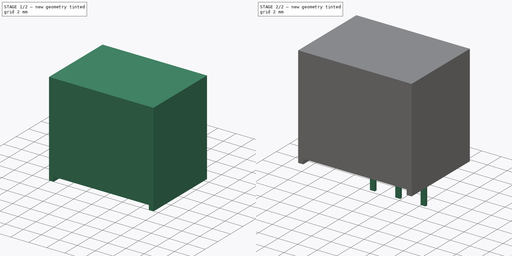
[diagram: build sequence overview — one tinted view per stage of 2, left to right]
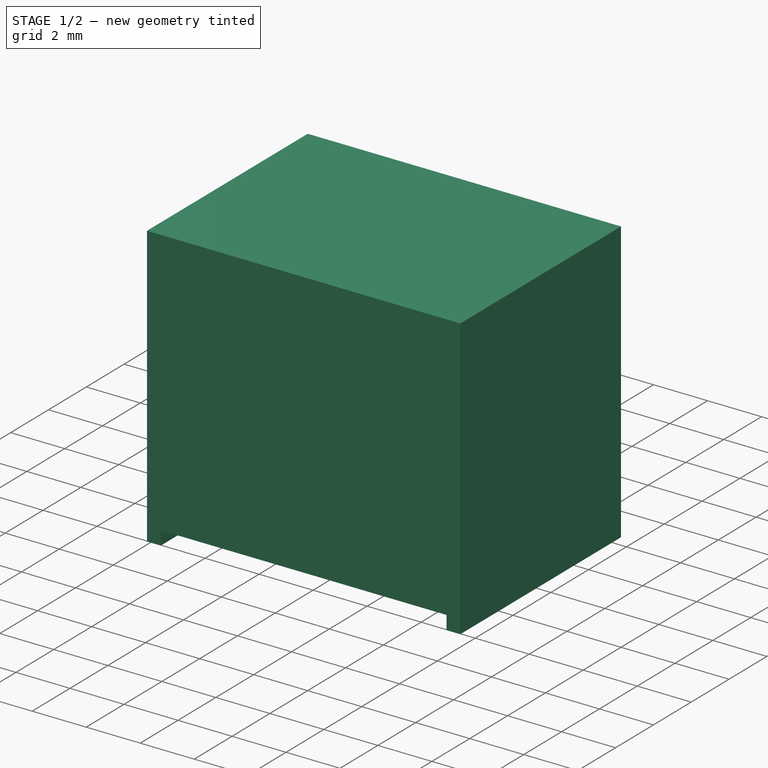
[diagram: stage 1 of 2 — iso view after this stage's code; geometry added in this stage tinted green]
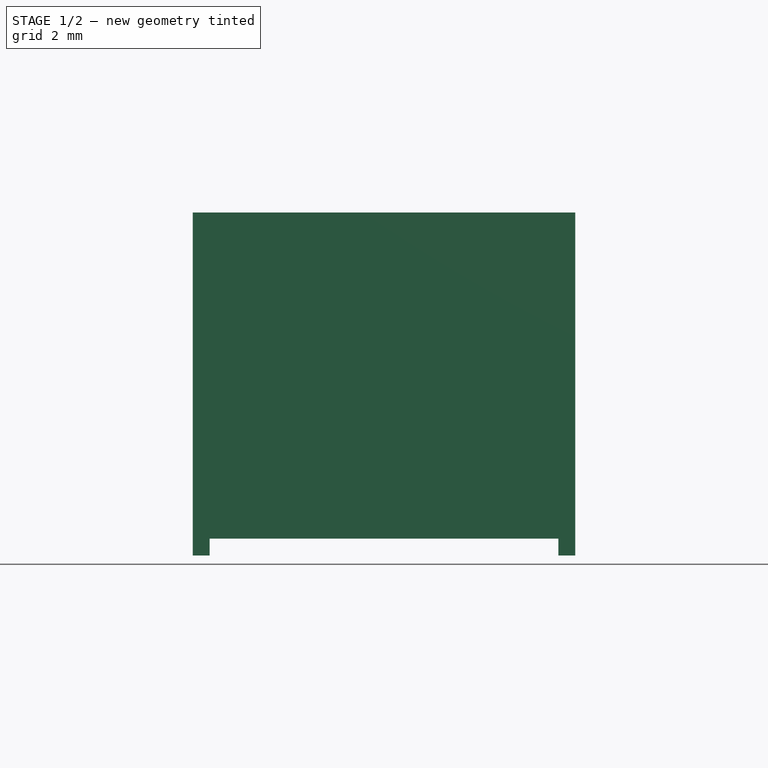
[diagram: stage 1 of 2 — front view after this stage's code; geometry added in this stage tinted green]
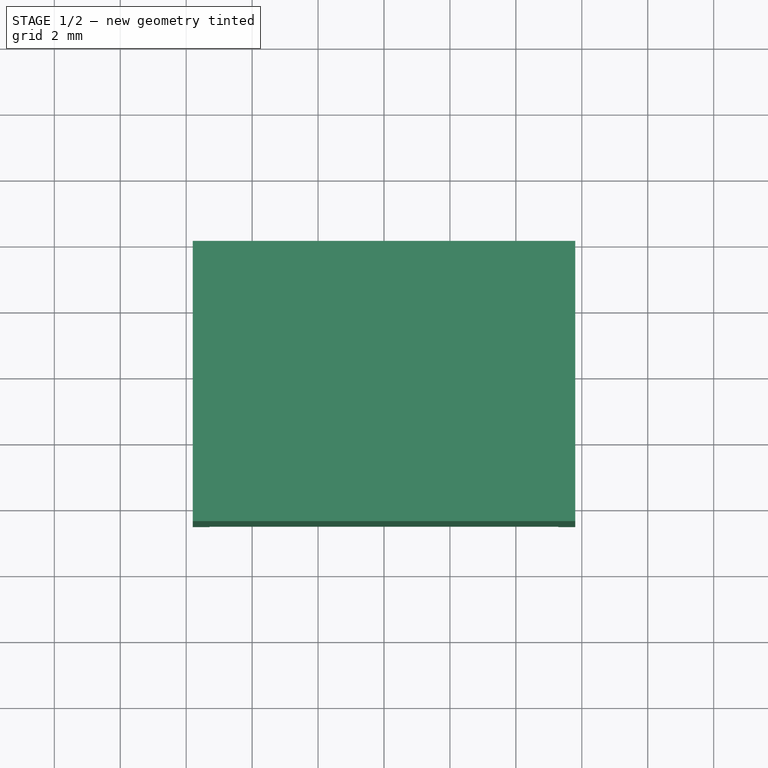
[diagram: stage 1 of 2 — top view after this stage's code; geometry added in this stage tinted green]
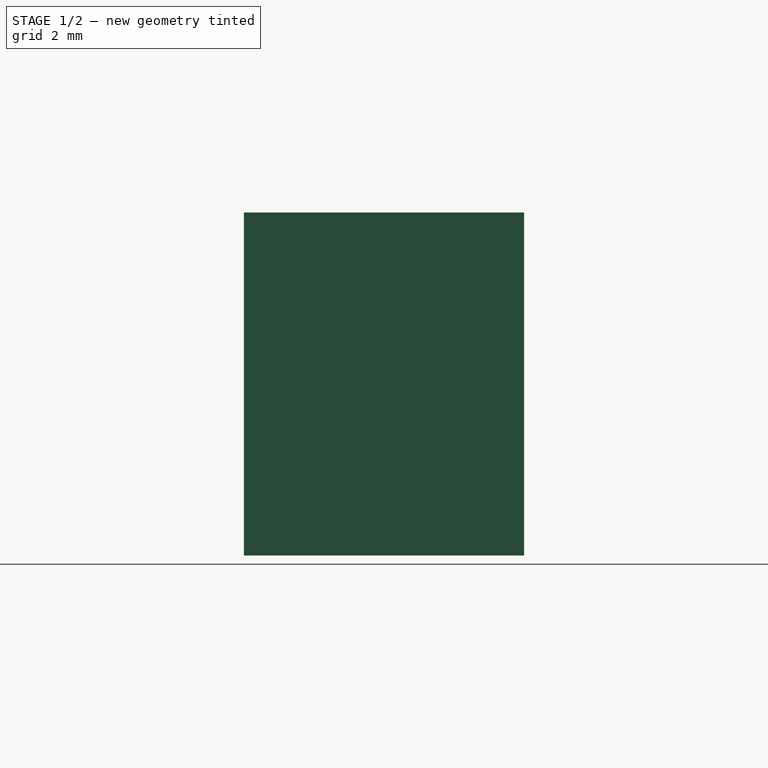
[diagram: stage 1 of 2 — right view after this stage's code; geometry added in this stage tinted green]
FCSTD DOCUMENT  (FreeCAD 0.16RUnknown)
Label: R-78E-0-5
License: All rights reserved
LicenseURL: http://en.wikipedia.org/wiki/All_rights_reserved
objects: Sketcher::SketchObject×2, PartDesign::Pad×2
note: 6 computed .brp shape members not serialized (recipe doc carries the construction recipe); baked Part::Feature solids carry a one-line shape summary decoded from their .brp

FEATURE [Sketcher::SketchObject] Sketch
  Placement = pos=(0,0,0) rot=(1,0,0;1.5708rad)
  sketch-geometry (8):
    g0: LineSegment StartX=-5.29 StartY=0 StartZ=0 EndX=-5.8 EndY=0 EndZ=0
    g1: LineSegment StartX=-5.8 StartY=0 StartZ=0 EndX=-5.8 EndY=10.4 EndZ=0
    g2: LineSegment StartX=-5.8 StartY=10.4 StartZ=0 EndX=5.8 EndY=10.4 EndZ=0
    g3: LineSegment StartX=5.8 StartY=10.4 StartZ=0 EndX=5.8 EndY=0 EndZ=0
    g4: LineSegment StartX=5.8 StartY=0 StartZ=0 EndX=5.29 EndY=0 EndZ=0
    g5: LineSegment StartX=5.29 StartY=0 StartZ=0 EndX=5.29 EndY=0.51 EndZ=0
    g6: LineSegment StartX=5.29 StartY=0.51 StartZ=0 EndX=-5.29 EndY=0.51 EndZ=0
    g7: LineSegment StartX=-5.29 StartY=0.51 StartZ=0 EndX=-5.29 EndY=0 EndZ=0
  constraints (24):
    c: PointOnObject(g0,g-1)
    c: PointOnObject(g0,g-1)
    c: Coincident(g0,g1)
    c: Vertical(g1)
    c: Coincident(g1,g2)
    c: Horizontal(g2)
    c: Coincident(g2,g3)
    c: PointOnObject(g3,g-1)
    c: Vertical(g3)
    c: Coincident(g3,g4)
    c: PointOnObject(g4,g-1)
    c: Coincident(g4,g5)
    c: Vertical(g5)
    c: Coincident(g5,g6)
    c: Horizontal(g6)
    c: Coincident(g6,g7)
    c: Coincident(g7,g0)
    c: Vertical(g7)
    c: Symmetric(g1,g2,g-2)
    c: Equal(g4,g0)
    c: DistanceY(g7,g7) = 0.51
    c: DistanceY(g1,g1) = 10.4
    c: DistanceX(g0,g0) = 0.51
    c: DistanceX(g2,g2) = 11.6
FEATURE [PartDesign::Pad] Pad
  Length = 8.5
  Length2 = 100
  Placement = pos=(0,0,0) rot=(1,0,0;1.5708rad)
  Sketch = -> Sketch
  Type = 0
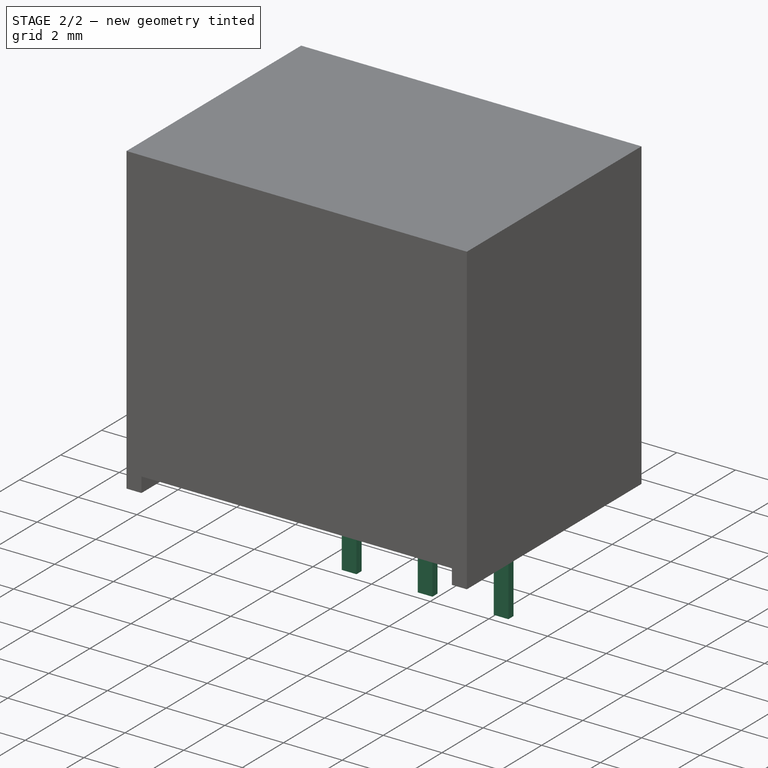
[diagram: stage 2 of 2 — iso view after this stage's code; geometry added in this stage tinted green]
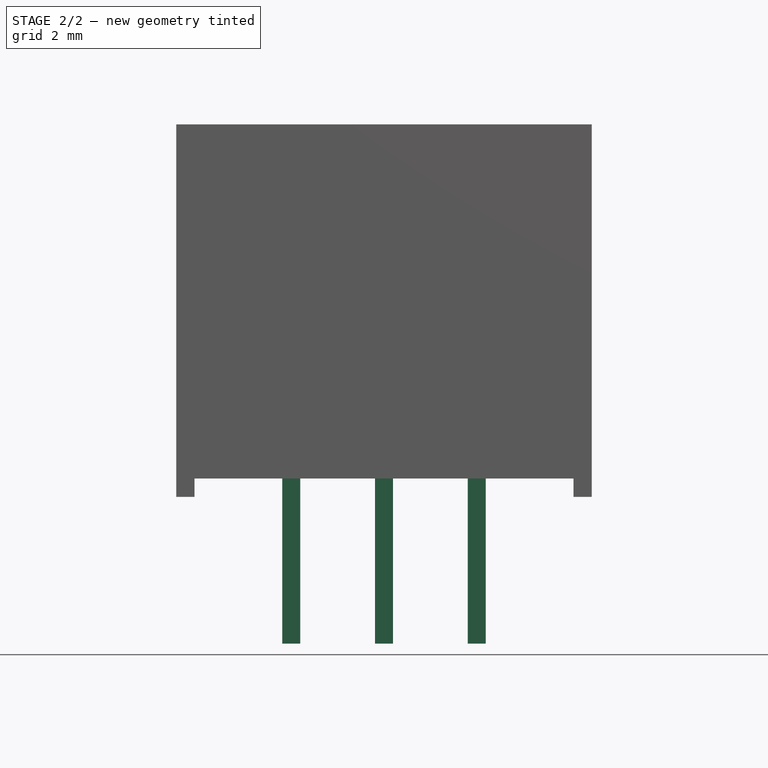
[diagram: stage 2 of 2 — front view after this stage's code; geometry added in this stage tinted green]
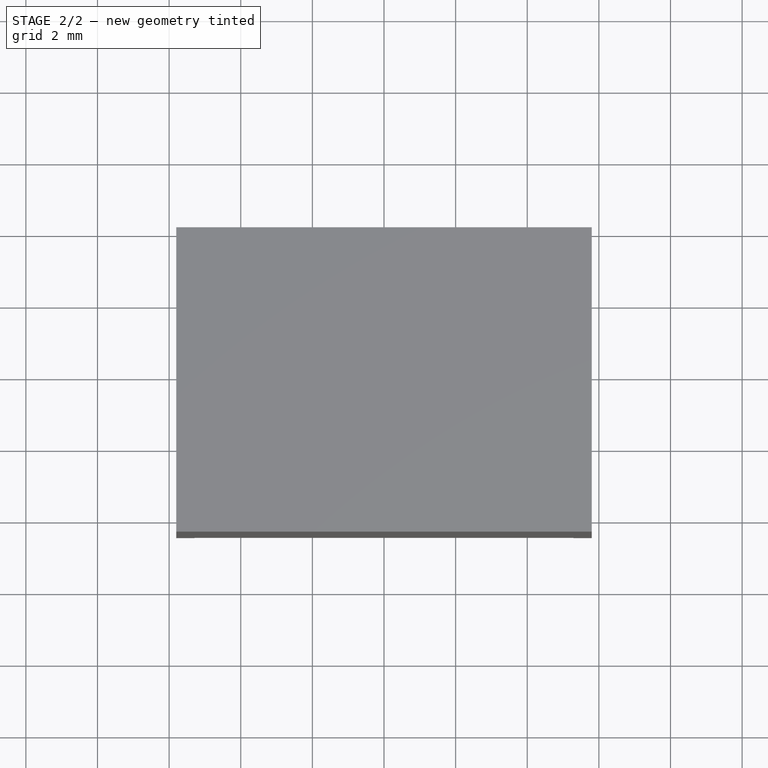
[diagram: stage 2 of 2 — top view after this stage's code; geometry added in this stage tinted green]
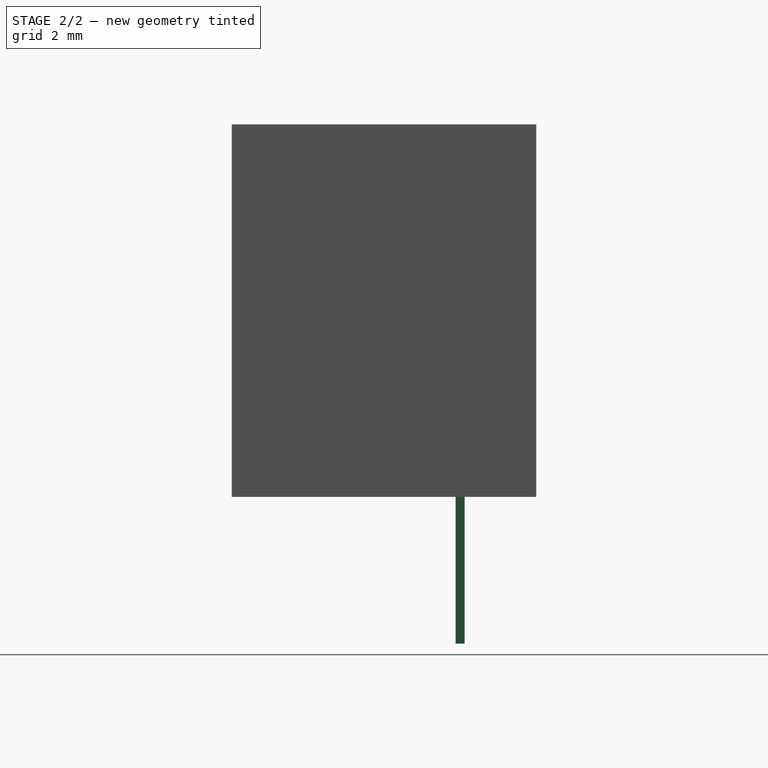
[diagram: stage 2 of 2 — right view after this stage's code; geometry added in this stage tinted green]
FEATURE [Sketcher::SketchObject] Sketch001
  ExternalGeometry = -> [Pad]
  Placement = pos=(0,0,0.51) rot=(1,0,0;3.14159rad)
  Support = -> Pad [Face7]
  sketch-geometry (12):
    g0: LineSegment StartX=-2.84 StartY=2.25 StartZ=0 EndX=-2.34 EndY=2.25 EndZ=0
    g1: LineSegment StartX=-2.34 StartY=2.25 StartZ=0 EndX=-2.34 EndY=2 EndZ=0
    g2: LineSegment StartX=-2.34 StartY=2 StartZ=0 EndX=-2.84 EndY=2 EndZ=0
    g3: LineSegment StartX=-2.84 StartY=2 StartZ=0 EndX=-2.84 EndY=2.25 EndZ=0
    g4: LineSegment StartX=-0.25 StartY=2.25 StartZ=0 EndX=0.25 EndY=2.25 EndZ=0
    g5: LineSegment StartX=0.25 StartY=2.25 StartZ=0 EndX=0.25 EndY=2 EndZ=0
    g6: LineSegment StartX=0.25 StartY=2 StartZ=0 EndX=-0.25 EndY=2 EndZ=0
    g7: LineSegment StartX=-0.25 StartY=2 StartZ=0 EndX=-0.25 EndY=2.25 EndZ=0
    g8: LineSegment StartX=2.84 StartY=2.25 StartZ=0 EndX=2.34 EndY=2.25 EndZ=0
    g9: LineSegment StartX=2.34 StartY=2.25 StartZ=0 EndX=2.34 EndY=2 EndZ=0
    g10: LineSegment StartX=2.34 StartY=2 StartZ=0 EndX=2.84 EndY=2 EndZ=0
    g11: LineSegment StartX=2.84 StartY=2 StartZ=0 EndX=2.84 EndY=2.25 EndZ=0
  constraints (36):
    c: Coincident(g0,g1)
    c: Coincident(g1,g2)
    c: Coincident(g2,g3)
    c: Coincident(g3,g0)
    c: Horizontal(g0)
    c: Horizontal(g2)
    c: Vertical(g1)
    c: Vertical(g3)
    c: Coincident(g4,g5)
    c: Coincident(g5,g6)
    c: Coincident(g6,g7)
    c: Coincident(g7,g4)
    c: Horizontal(g4)
    c: Horizontal(g6)
    c: Vertical(g5)
    c: Vertical(g7)
    c: Coincident(g8,g9)
    c: Coincident(g9,g10)
    c: Coincident(g10,g11)
    c: Coincident(g11,g8)
    c: Horizontal(g8)
    c: Horizontal(g10)
    c: Vertical(g9)
    c: Vertical(g11)
    c: Symmetric(g4,g4,g-2)
    c: Equal(g5,g9)
    c: Equal(g9,g1)
    c: Equal(g2,g6)
    c: Equal(g6,g10)
    c: DistanceY(g5,g5) = 0.25
    c: DistanceX(g6,g6) = 0.5
    c: DistanceY(g-1,g6) = 2
    c: DistanceY(g-1,g10) = 2
    c: DistanceY(g-1,g2) = 2
    c: DistanceX(g-4,g2) = 2.96
    c: DistanceX(g10,g-5) = 2.96
FEATURE [PartDesign::Pad] Pad001
  Length = 4.61
  Length2 = 100
  Placement = pos=(0,0,0) rot=(1,0,0;1.5708rad)
  Sketch = -> Sketch001
  Type = 0
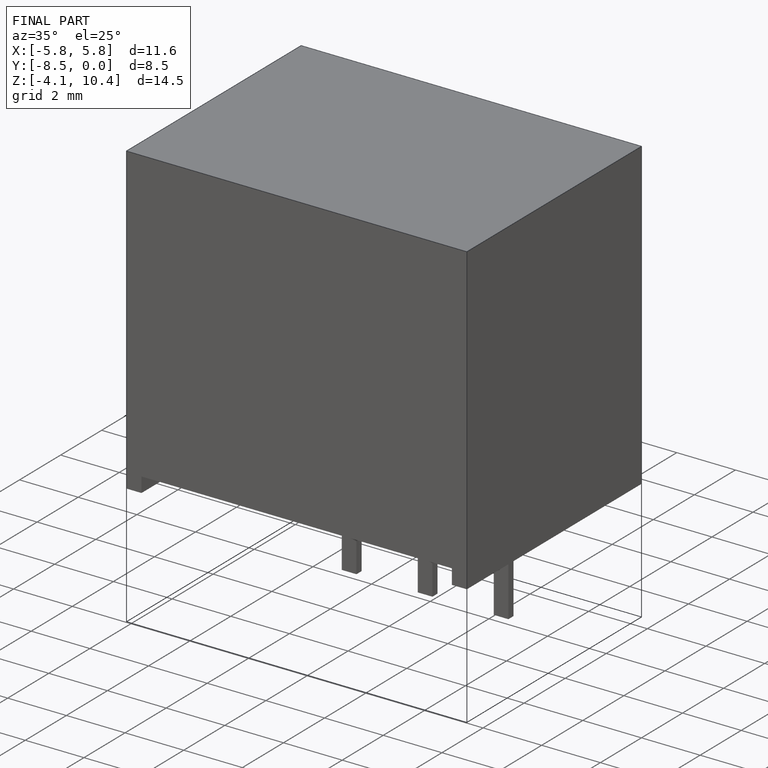
[diagram: finished part — iso view with bounding-box wireframe]
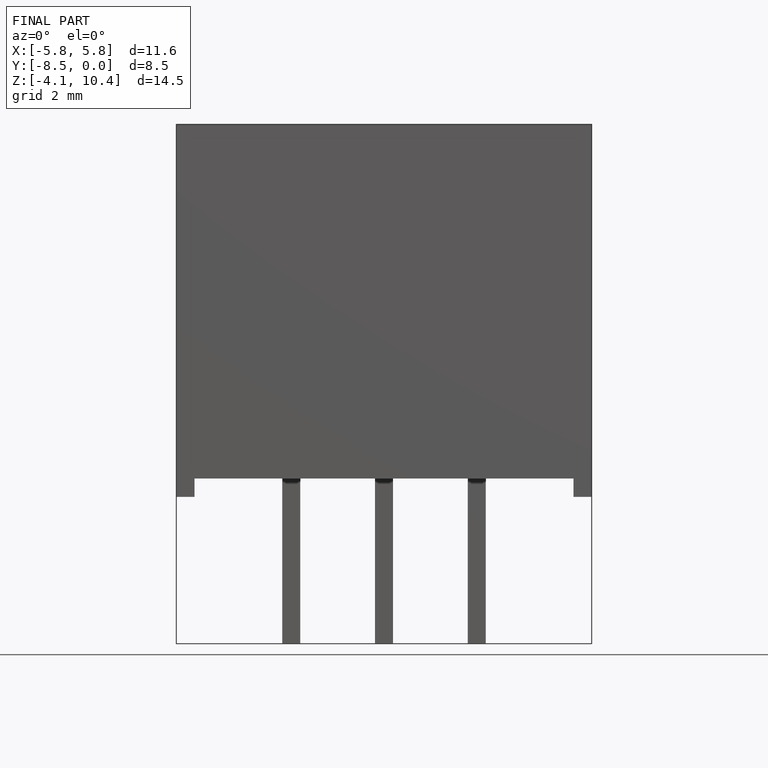
[diagram: finished part — front view with bounding-box wireframe]
